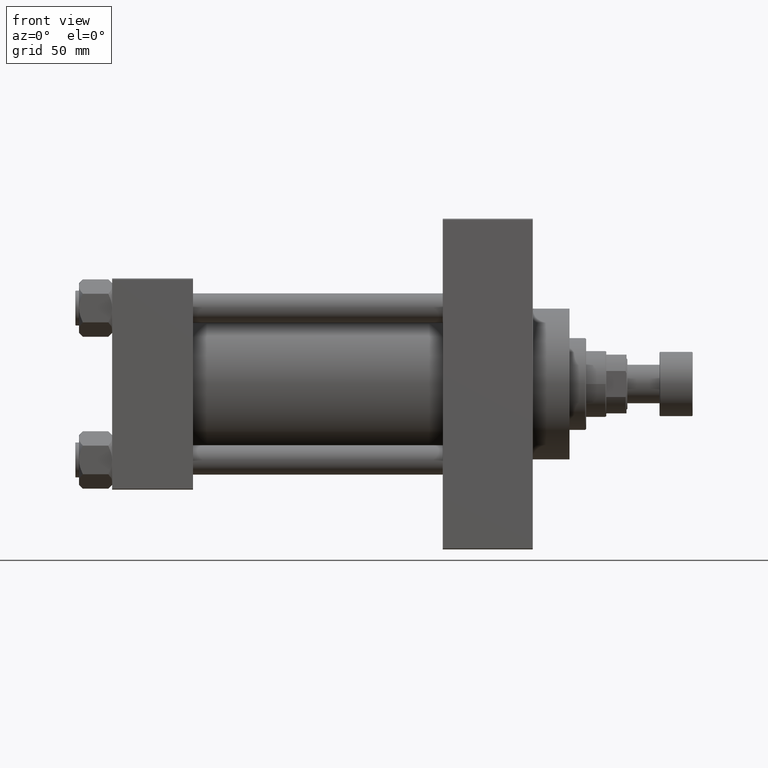
[diagram: clean part render]
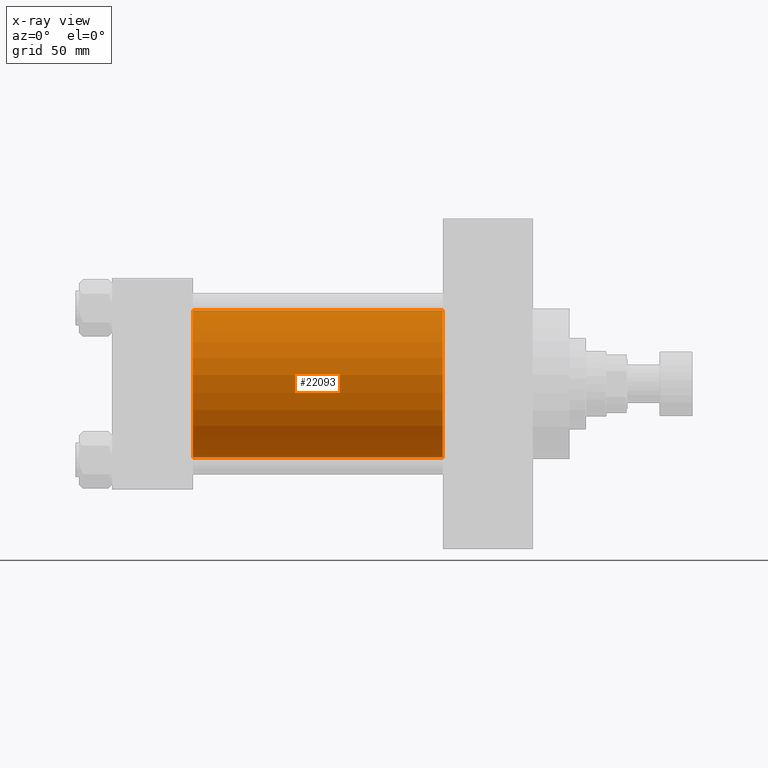
[diagram: x-ray — body ghosted, one internal face saturated and labeled with its STEP entity id]
A machine part, front view, then the same camera in x-ray: the body is ghosted and one INTERNAL B-rep face — a face not visible from any outside direction — is saturated and labeled: STEP entity #22093.
In plain terms, the highlighted cylindrical surface (partial cylindrical patch) has radius 40 mm, axis along (-1, -0, -0).
Its self-contained STEP definition (entity closure, byte-faithful):
#1464 = CARTESIAN_POINT ( 'NONE',  ( 44.00000000000000000, -2.602085213965210642E-15, 40.00000000000000000 ) ) ;
#1474 = DIRECTION ( 'NONE',  ( -1.000000000000000000, -0.000000000000000000, -0.000000000000000000 ) ) ;
#3418 = DIRECTION ( 'NONE',  ( 1.000000000000000000, 0.000000000000000000, 0.000000000000000000 ) ) ;
#3877 = VERTEX_POINT ( 'NONE', #29034 ) ;
#5592 = CARTESIAN_POINT ( 'NONE',  ( 180.0000000000000000, 2.296501982624201990E-15, -40.00000000000000000 ) ) ;
#5611 = LINE ( 'NONE', #27498, #36855 ) ;
#8252 = VECTOR ( 'NONE', #28649, 1000.000000000000000 ) ;
#9132 = DIRECTION ( 'NONE',  ( 0.000000000000000000, 0.000000000000000000, 1.000000000000000000 ) ) ;
#9275 = EDGE_CURVE ( 'NONE', #29889, #3877, #13807, .T. ) ;
#9389 = AXIS2_PLACEMENT_3D ( 'NONE', #10689, #3418, #40867 ) ;
#10689 = CARTESIAN_POINT ( 'NONE',  ( 44.00000000000000000, -2.602085213965210642E-15, 0.000000000000000000 ) ) ;
#10898 = ORIENTED_EDGE ( 'NONE', *, *, #33893, .T. ) ;
#12459 = ORIENTED_EDGE ( 'NONE', *, *, #9275, .T. ) ;
#13807 = LINE ( 'NONE', #17456, #8252 ) ;
#13964 = DIRECTION ( 'NONE',  ( 1.000000000000000000, 0.000000000000000000, 0.000000000000000000 ) ) ;
#16051 = CARTESIAN_POINT ( 'NONE',  ( 180.0000000000000000, -2.602085213965210642E-15, 40.00000000000000000 ) ) ;
#17456 = CARTESIAN_POINT ( 'NONE',  ( 180.0000000000000000, 2.296501982624201990E-15, -40.00000000000000000 ) ) ;
#19859 = FACE_OUTER_BOUND ( 'NONE', #25462, .T. ) ;
#22093 = ADVANCED_FACE ( 'NONE', ( #19859 ), #31534, .F. ) ;
#22974 = EDGE_CURVE ( 'NONE', #26062, #3877, #38896, .T. ) ;
#23269 = CIRCLE ( 'NONE', #29499, 40.00000000000000000 ) ;
#24114 = ORIENTED_EDGE ( 'NONE', *, *, #47687, .F. ) ;
#25462 = EDGE_LOOP ( 'NONE', ( #10898, #12459, #43387, #24114 ) ) ;
#26022 = VERTEX_POINT ( 'NONE', #16051 ) ;
#26062 = VERTEX_POINT ( 'NONE', #1464 ) ;
#26920 = DIRECTION ( 'NONE',  ( -1.000000000000000000, -0.000000000000000000, -0.000000000000000000 ) ) ;
#27243 = AXIS2_PLACEMENT_3D ( 'NONE', #34704, #26920, #9132 ) ;
#27498 = CARTESIAN_POINT ( 'NONE',  ( 180.0000000000000000, -2.602085213965210642E-15, 40.00000000000000000 ) ) ;
#28649 = DIRECTION ( 'NONE',  ( -1.000000000000000000, -0.000000000000000000, -0.000000000000000000 ) ) ;
#29034 = CARTESIAN_POINT ( 'NONE',  ( 44.00000000000000000, 2.296501982624201990E-15, -40.00000000000000000 ) ) ;
#29499 = AXIS2_PLACEMENT_3D ( 'NONE', #35874, #13964, #32220 ) ;
#29889 = VERTEX_POINT ( 'NONE', #5592 ) ;
#31534 = CYLINDRICAL_SURFACE ( 'NONE', #27243, 40.00000000000000000 ) ;
#32220 = DIRECTION ( 'NONE',  ( 0.000000000000000000, 0.000000000000000000, -1.000000000000000000 ) ) ;
#33893 = EDGE_CURVE ( 'NONE', #26022, #29889, #23269, .T. ) ;
#34704 = CARTESIAN_POINT ( 'NONE',  ( 180.0000000000000000, -2.602085213965210642E-15, 0.000000000000000000 ) ) ;
#35874 = CARTESIAN_POINT ( 'NONE',  ( 180.0000000000000000, -2.602085213965210642E-15, 0.000000000000000000 ) ) ;
#36855 = VECTOR ( 'NONE', #1474, 1000.000000000000000 ) ;
#38896 = CIRCLE ( 'NONE', #9389, 40.00000000000000000 ) ;
#40867 = DIRECTION ( 'NONE',  ( 0.000000000000000000, 0.000000000000000000, -1.000000000000000000 ) ) ;
#43387 = ORIENTED_EDGE ( 'NONE', *, *, #22974, .F. ) ;
#47687 = EDGE_CURVE ( 'NONE', #26022, #26062, #5611, .T. ) ;